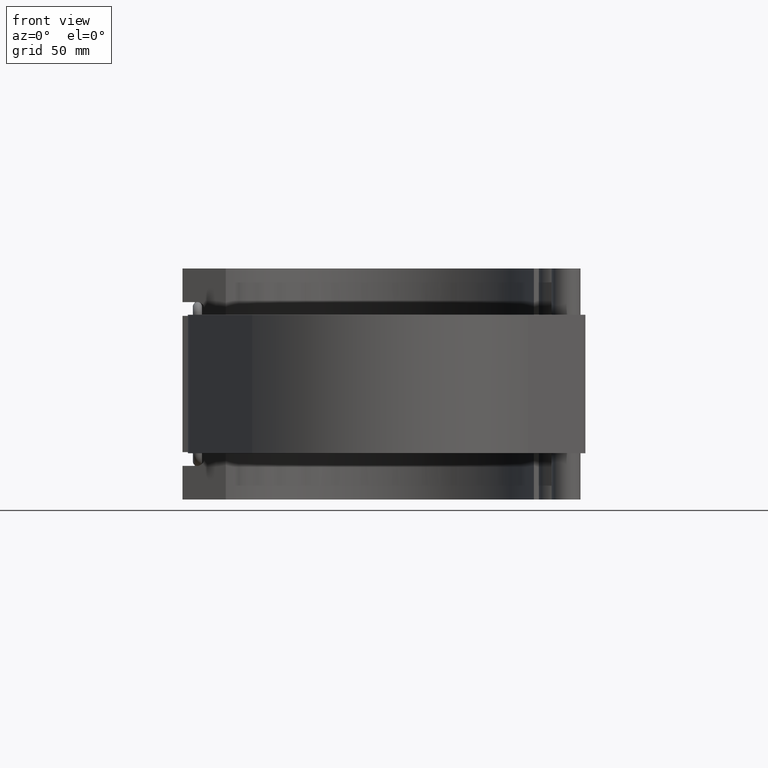
[diagram: clean part render]
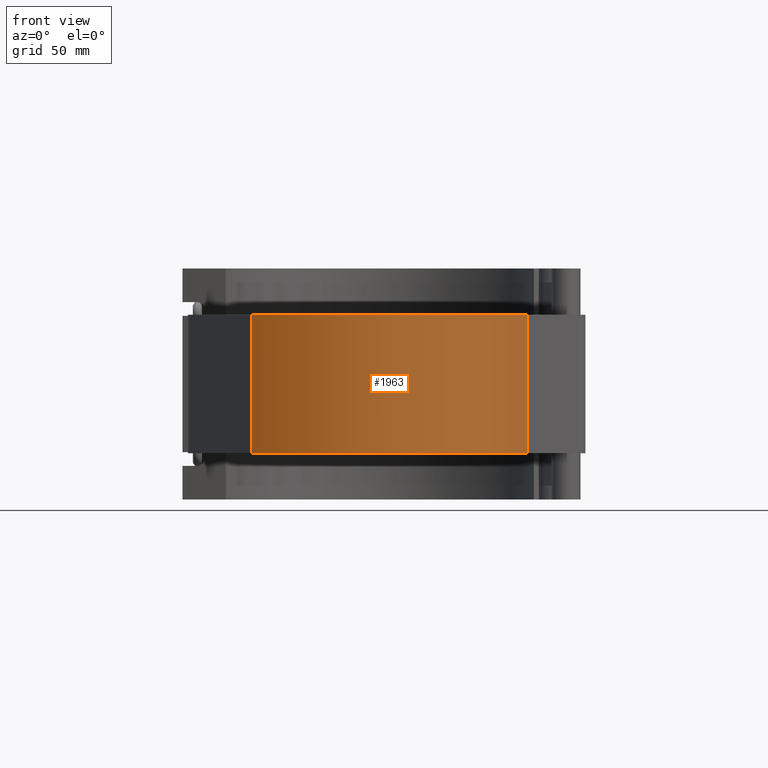
[diagram: same view with one face highlighted and labeled with its STEP entity id]
A machine part, front view. The second image highlights one B-rep face of the part: STEP entity #1963.
In plain terms, the highlighted cylindrical surface (partial cylindrical patch) has radius 128.75 mm, axis along (0, 0, 1).
Its self-contained STEP definition (entity closure, byte-faithful):
#190=LINE('',#3538,#351);
#191=LINE('',#3540,#352);
#351=VECTOR('',#2687,105.6);
#352=VECTOR('',#2690,105.6);
#437=CYLINDRICAL_SURFACE('',#2159,128.75);
#542=FACE_OUTER_BOUND('',#684,.T.);
#684=EDGE_LOOP('',(#1699,#1700,#1701,#1702));
#769=CIRCLE('',#2082,128.75);
#777=CIRCLE('',#2091,128.75);
#891=VERTEX_POINT('',#3280);
#892=VERTEX_POINT('',#3282);
#906=VERTEX_POINT('',#3312);
#907=VERTEX_POINT('',#3314);
#1105=EDGE_CURVE('',#891,#892,#769,.T.);
#1121=EDGE_CURVE('',#906,#907,#777,.T.);
#1232=EDGE_CURVE('',#891,#907,#190,.T.);
#1233=EDGE_CURVE('',#892,#906,#191,.T.);
#1699=ORIENTED_EDGE('',*,*,#1232,.T.);
#1700=ORIENTED_EDGE('',*,*,#1121,.F.);
#1701=ORIENTED_EDGE('',*,*,#1233,.F.);
#1702=ORIENTED_EDGE('',*,*,#1105,.F.);
#1963=ADVANCED_FACE('',(#542),#437,.T.);
#2082=AXIS2_PLACEMENT_3D('',#3283,#2446,#2447);
#2091=AXIS2_PLACEMENT_3D('',#3315,#2472,#2473);
#2159=AXIS2_PLACEMENT_3D('',#3539,#2688,#2689);
#2446=DIRECTION('center_axis',(0.,0.,-1.));
#2447=DIRECTION('ref_axis',(0.98858601250743,0.150657545030643,0.));
#2472=DIRECTION('center_axis',(0.,0.,1.));
#2473=DIRECTION('ref_axis',(0.98858601250743,0.150657545030643,0.));
#2687=DIRECTION('',(0.,0.,1.));
#2688=DIRECTION('center_axis',(0.,0.,1.));
#2689=DIRECTION('ref_axis',(0.98858601250743,0.150657545030643,0.));
#2690=DIRECTION('',(0.,0.,1.));
#3280=CARTESIAN_POINT('',(112.822369276394,-62.0296339732956,-52.8));
#3282=CARTESIAN_POINT('',(-97.3738932413148,-84.2311546580541,-52.8));
#3283=CARTESIAN_POINT('Origin',(0.,0.,-52.8));
#3312=CARTESIAN_POINT('',(-97.3738932413148,-84.2311546580541,52.8));
#3314=CARTESIAN_POINT('',(112.822369276394,-62.0296339732956,52.8));
#3315=CARTESIAN_POINT('Origin',(0.,0.,52.8));
#3538=CARTESIAN_POINT('',(112.822369276394,-62.0296339732956,0.));
#3539=CARTESIAN_POINT('Origin',(0.,0.,0.));
#3540=CARTESIAN_POINT('',(-97.3738932413148,-84.2311546580541,0.));